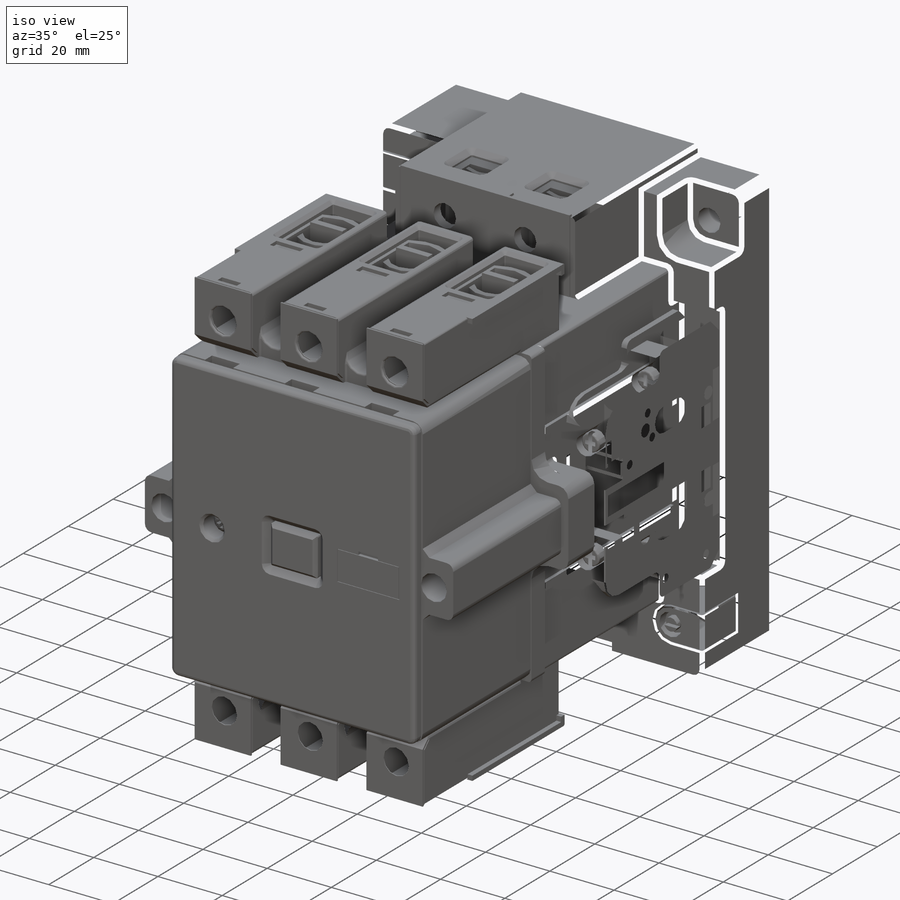
[diagram: iso view]
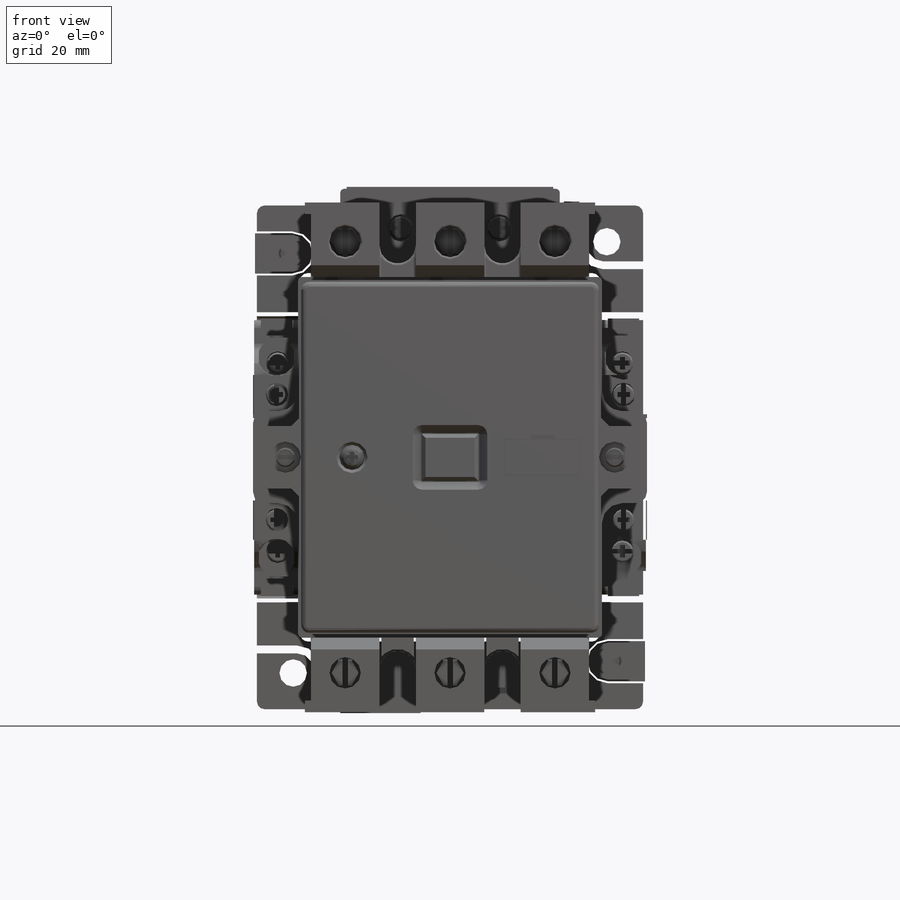
[diagram: front view]
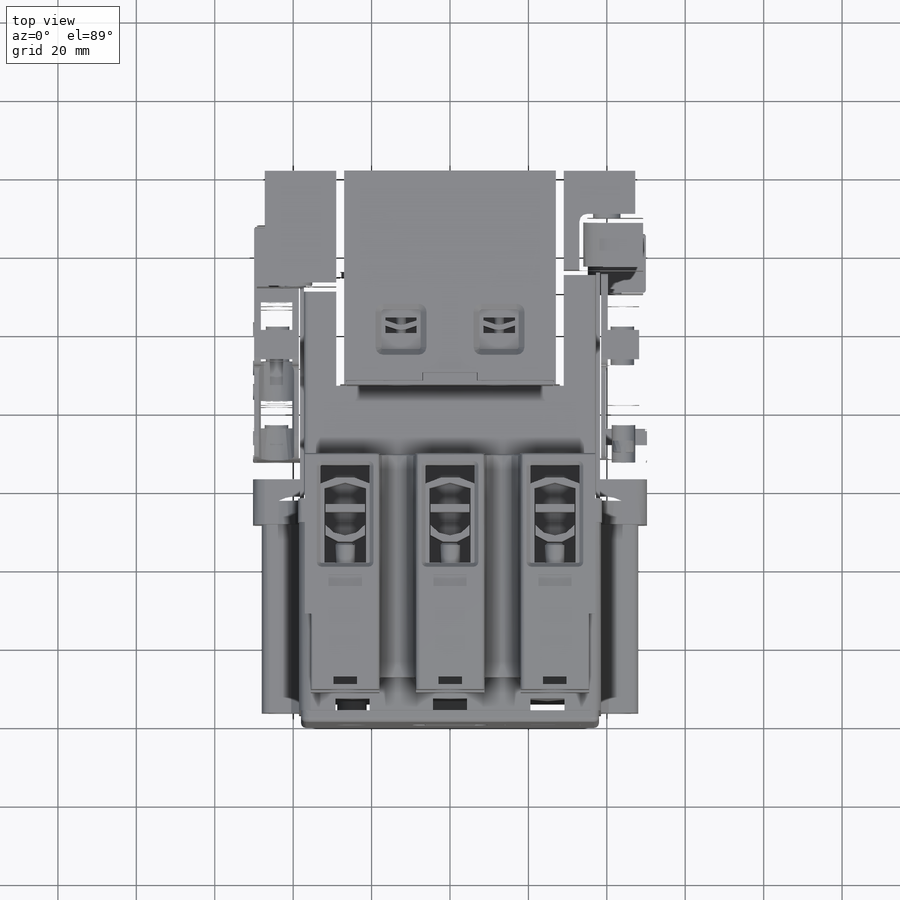
[diagram: top view]
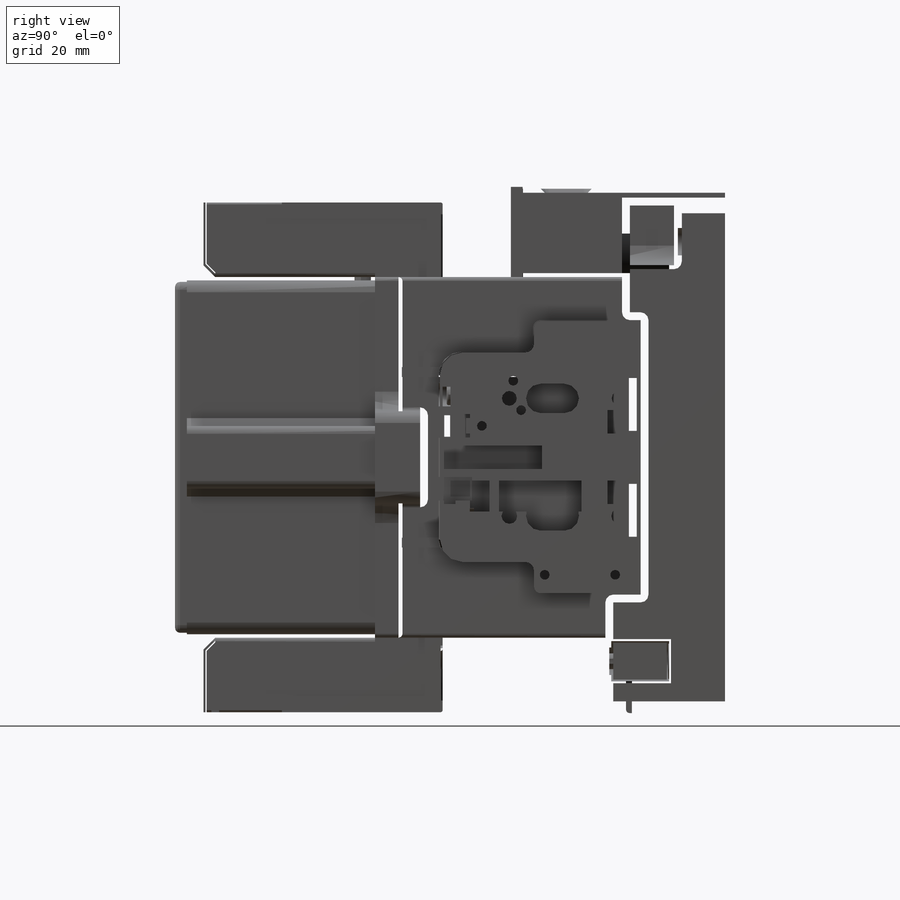
[diagram: right view]
SOLIDWORKS PART (.sldprt)
format: sldprt  version: not decoded by parser v0  size: 3,999,744 bytes
history: native  units: mm
features: sketch x93, cut_extrude x50, extrude x43, fillet x32, chamfer x8, mirror x5, material x1 (+14 scaffold rows collapsed)
feature tree (246):
  scaffold x14  (default folders/planes/origin — collapsed)
  material  "Material <not specified>"
  sketch  "Sketch1"  dims[D1=50.25mm D2=100.5mm D3=133.5mm D4=65.25mm D5=68.5mm D6=28.0mm D7=56.0mm D8=65.25mm]
  extrude  "Base-Extrude"  Depth=25.25mm
  sketch  "Sketch2"  dims[D1=29.25mm D2=29.25mm]
  extrude  "Boss-Extrude1"  Depth=4.25mm
  sketch  "Sketch3"  dims[D1=13.0mm D2=13.0mm D3=72.0mm D4=72.0mm D5=36.0mm D6=36.0mm]
  cut_extrude  "Cut-Extrude1"  Depth=4.75mm
  sketch  "Sketch4"  dims[c1.D3=5.0mm c1.D4=7.0mm c1.D1=16.0mm c1.D2=16.0mm c2.D1=16.25mm c2.D2=16.25mm c2.D5=40.0mm c2.D6=55.0mm c2.D7=40.0mm c2.D8=55.0mm]
  cut_extrude  "Cut-Extrude2"  Depth=13.25mm
  sketch  "Sketch5"  dims[D5=7.0mm D1=40.0mm D2=40.0mm D3=55.0mm D4=55.0mm]
  cut_extrude  "Cut-Extrude3"  Depth=13.25mm
  sketch  "Sketch6"  dims[D1=20.5mm D2=12.0mm D3=28.0mm]
  cut_extrude  "Cut-Extrude4"  Depth=1.5mm
  sketch  "Sketch7"  dims[D1=3.5mm D2=3.0mm D3=13.0mm D4=36.25mm]
  cut_extrude  "Cut-Extrude5"  Depth=5mm
  sketch  "Sketch8"  dims[D1=5.125mm D6=5.125mm D2=13.25mm D3=10.0mm D4=13.25mm D5=10.0mm]
  cut_extrude  "Cut-Extrude6"  Depth=15.25mm
  sketch  "Sketch9"  dims[D1=9.0mm]
  extrude  "Boss-Extrude2"  Depth=0.25mm
  sketch  "Sketch10"  dims[c1.D1=10.0mm c1.D2=10.0mm c1.D3=7.0mm c1.D4=7.0mm c2.D2=10.0mm c2.D4=16.0mm]
  extrude  "Boss-Extrude3"  Depth=15mm
  sketch  "Sketch11"  dims[D1=7.0mm]
  extrude  "Boss-Extrude4"  Depth=10mm
  sketch  "Sketch12"  dims[D1=6.0mm]
  extrude  "Boss-Extrude5"  Depth=3mm
  sketch  "Sketch13"  dims[D1=4.0mm D2=1.2mm D3=0.6mm D4=0.6mm D5=1.2mm]
  extrude  "Boss-Extrude6"  Depth=2mm
  sketch  "Sketch14"  dims[c1.D1=4.5mm c1.D6=4.5mm c2.D1=~5.151968mm c2.D2=0.6mm c2.D3=1.2mm c2.D4=0.6mm c2.D5=1.2mm]
  cut_extrude  "Cut-Extrude7"  Depth=1.5mm
  sketch  "Sketch15"  dims[D1=20.0mm D2=9.0mm D3=0.25mm D4=0.25mm]
  extrude  "Boss-Extrude7"  Depth=1.5mm
  sketch  "Sketch16"  dims[D1=32.5mm D2=56.0mm]
  extrude  "Boss-Extrude8"  Depth=29.25mm
  sketch  "Sketch17"  dims[c1.D1=73.8mm c1.D2=92.0mm c1.D3=46.0mm c1.D4=36.9mm c2.D1=1.0mm c2.D4=1.0mm c2.D5=2.5mm c2.D6=2.5mm c2.D7=23.0mm c2.D8=23.0mm]
  extrude  "Boss-Extrude9"  Depth=57mm
  sketch  "Sketch18"  dims[D1=38.75mm D2=38.75mm D3=46.0mm D4=46.0mm]
  extrude  "Boss-Extrude10"  Depth=7mm
  sketch  "Sketch19"  dims[c1.D3=3.0mm c1.D1=11.0mm c1.D2=11.0mm c2.D1=11.75mm c2.D2=23.5mm]
  extrude  "Boss-Extrude11"  Depth=12.5mm
  fillet  "Fillet1"  Radius=5mm
  sketch  "Sketch20"  dims[c1.D9=2.0mm c1.D1=45.125mm c1.D2=45.125mm c1.D3=38.5mm c1.D4=38.5mm c1.D5=9.5mm c1.D6=9.5mm c1.D7=8.0mm c1.D8=8.0mm c2.D9=16.0mm c2.D12=2.0mm c2.D13=2.0mm c2.D14=2.0mm c2.D15=2.0mm]
  extrude  "Boss-Extrude12"  Depth=48mm
  sketch  "Sketch21"  dims[D1=8.0mm D2=42.0mm D3=84.0mm]
  cut_extrude  "Cut-Extrude8"  Depth=10mm
  sketch  "Sketch22"  dims[D1=7.0mm]
  extrude  "Boss-Extrude13"  Depth=1mm
  sketch  "Sketch23"  dims[D1=5.0mm D2=5.0mm]
  extrude  "Boss-Extrude14"  Depth=2mm
  sketch  "Sketch24"  dims[c1.D1=5.0mm c1.D4=5.0mm c2.D1=~5.853623mm c2.D2=0.6mm c2.D3=1.2mm c2.D5=0.6mm c2.D6=1.2mm]
  cut_extrude  "Cut-Extrude9"  Depth=1.5mm
  fillet  "Fillet2"  Radius=3mm
  sketch  "Sketch25"  dims[D1=4.35mm D2=8.7mm D3=58.4mm D4=29.2mm D5=3.0mm]
  cut_extrude  "Cut-Extrude10"  Depth=1.5mm
  sketch  "Sketch26"  dims[D1=12.0mm D2=14.5mm D3=6.0mm D4=7.25mm]
  extrude  "Boss-Extrude15"  Depth=6mm
  chamfer  "Chamfer3"  Distance=1mm Angle=45deg
  fillet  "Fillet3"  Radius=0.5mm
  sketch  "Sketch27"  dims[D5=2.0mm D10=0.35mm D1=76.0mm D2=89.5mm D3=44.75mm D4=38.0mm D6=12.5mm D7=15.0mm D8=7.5mm D9=6.25mm]
  extrude  "Boss-Extrude16"  Depth=3mm
  fillet  "Fillet4"  Radius=1.25mm
  chamfer  "Chamfer5"  Distance=2mm Angle=45deg
  sketch  "Sketch28"  dims[D1=6.5mm D2=25.0mm]
  cut_extrude  "Cut-Extrude11"  Depth=7mm
  sketch  "Sketch30"  dims[D1=7.5mm D2=6.5mm]
  extrude  "Boss-Extrude17"  Depth=3mm
  sketch  "Sketch29"  dims[D1=6.4mm]
  extrude  "Boss-Extrude18"  Depth=3mm
  fillet  "Fillet5"  Radius=2mm
  sketch  "Sketch31"  dims[c1.D6=6.5mm c1.D1=1.0mm c1.D2=3.0mm c1.D3=3.0mm c1.D4=1.0mm c1.D5=1.0mm c2.D6=25.5mm c2.D7=0.5mm c2.D8=1.0mm]
  cut_extrude  "Cut-Extrude12"  Depth=3mm
  fillet  "Fillet6"  Radius=1mm
  sketch  "Sketch32"  dims[D1=9.25mm D2=19.25mm D3=6.125mm D4=10.25mm D5=6.5625mm D6=4.625mm D7=14.0mm]
  cut_extrude  "Cut-Extrude13"  Depth=1mm
  chamfer  "Chamfer6"  Distance=0.75mm Angle=45deg
  sketch  "Sketch33"  dims[D1=9.0mm D2=19.0mm D3=4.5mm D4=14.125mm]
  extrude  "Boss-Extrude19"  Depth=1mm
  sketch  "Sketch34"  dims[c1.D5=0.5mm c1.D1=10.0mm c1.D2=35.5mm c1.D3=10.5mm c1.D4=10.5mm c2.D5=56.0mm]
  cut_extrude  "Cut-Extrude14"  Depth=22mm
  chamfer  "Chamfer7"  Distance=1.5mm Angle=45deg
  sketch  "Sketch35"  dims[D1=32.5mm D2=16.0mm D3=42.0mm D4=21.0mm]
  cut_extrude  "Cut-Extrude15"  Depth=20mm
  sketch  "Sketch36"  dims[D1=32.5mm D2=42.0mm D3=21.0mm D4=16.0mm D5=4.0mm D6=4.0mm D7=8.0mm D8=8.0mm D9=5.0mm D10=4.5mm D11=4.5mm D12=5.0mm]
  extrude  "Boss-Extrude20"  Depth=19mm
  sketch  "Sketch39"  dims[D1=53.0mm D2=14.0mm D3=1.0mm D4=3.0mm D5=19.5mm D6=7.0mm]
  cut_extrude  "Cut-Extrude16"  Depth=18.5mm
  sketch  "Sketch40"  dims[D1=5.0mm D2=4.0mm D3=4.0mm D4=15.0mm]
  cut_extrude  "Cut-Extrude17"  Depth=18.5mm
  sketch  "Sketch38"  dims[D4=3.0mm D5=4.0mm D1=1.25mm D2=4.0mm D3=8.0mm]
  extrude  "Boss-Extrude21"  Depth=18.5mm
  sketch  "Sketch43"  dims[D1=3.0mm D2=4.0mm D3=4.0mm D4=17.0mm]
  cut_extrude  "Cut-Extrude18"  Depth=2mm
  sketch  "Sketch41"  dims[D1=6.0mm D2=13.0mm D3=13.0mm D4=0.5mm]
  cut_extrude  "Cut-Extrude19"  Depth=2mm
  sketch  "Sketch42"  dims[D1=0.25mm]
  extrude  "Boss-Extrude22"  Depth=2mm
  fillet  "Fillet8"  Radius=0.2mm
  sketch  "Sketch44"  dims[c1.D1=13.0mm c1.D2=13.0mm c1.D3=6.0mm c1.D4=6.0mm c1.D5=12.0mm c1.D6=12.0mm c1.D7=14.0mm c1.D8=14.0mm c2.D1=15.0mm c2.D3=12.0mm c2.D4=12.0mm c3.D1=1.0mm c3.D2=1.0mm]
  extrude  "Boss-Extrude23"  Depth=10mm
  sketch  "Sketch45"  dims[c1.D2=2.5mm c1.D1=25.0mm c2.D2=6.5mm c2.D3=10.0mm]
  extrude  "Boss-Extrude24"  Depth=7mm
  sketch  "Sketch46"  dims[D1=6.0mm]
  extrude  "Boss-Extrude25"  Depth=2.5mm
  sketch  "Sketch47"  dims[c1.D4=6.0mm c1.D5=6.5mm c1.D6=6.5mm c1.D1=1.2mm c1.D2=0.6mm c1.D3=1.2mm c2.D4=0.6mm c2.D7=0.6mm c2.D8=1.2mm c2.D9=1.0mm c2.D10=1.0mm c2.D11=0.6mm c2.D12=1.2mm c2.D13=1.0mm c2.D14=1.0mm c3.D13=1.0mm c3.D14=1.0mm]
  cut_extrude  "Cut-Extrude21"  Depth=1.5mm
  fillet  "Fillet9"  Radius=0.5mm
  sketch  "Sketch49"  dims[c1.D1=1.0mm c1.D2=13.7mm c1.D3=52.7mm c1.D4=6.85mm c1.D5=3.0mm c1.D6=51.75mm c1.D7=26.35mm c2.D6=53.6mm]
  extrude  "Boss-Extrude26"  Depth=23mm
  sketch  "Sketch50"  dims[D4=7.0mm D1=10.5mm D2=10.5mm D3=25.0mm D5=0.4mm D6=15.5mm]
  cut_extrude  "Cut-Extrude22"  Depth=1mm
  sketch  "Sketch51"  dims[D4=7.0mm D5=7.0mm D6=9.0mm D7=9.0mm D1=21.0mm D2=21.0mm D3=20.0mm]
  extrude  "Boss-Extrude27"  Depth=3mm
  sketch  "Sketch52"  dims[D1=72.0mm D2=61.0mm D3=74.0mm D4=37.0mm]
  extrude  "Boss-Extrude28"  Depth=19mm
  sketch  "Sketch53"  dims[c1.D11=9.25mm c1.D9=0.5mm c1.D7=6.625mm c1.D10=6.625mm c1.D1=35.5mm c1.D2=71.0mm c1.D3=74.0mm c1.D4=1.5mm c1.D5=16.0mm c1.D6=19.0mm c2.D7=18.5mm c2.D8=26.7mm c2.D9=22.2mm c3.D7=22.15mm c3.D10=8.0mm c3.D3=1.5mm c3.D4=1.5mm c3.D13=14.0mm c3.D14=2.0mm c4.D13=2.5mm c4.D15=12.5mm c4.D16=2.5mm c4.D17=2.5mm c4.D18=2.0mm c4.D19=2.5mm c4.D20=2.5mm c4.D21=2.0mm c4.D22=12.5mm c4.D8=2.5mm c4.D9=12.5mm c4.D6=8.0mm c4.D11=9.25mm c4.D12=9.25mm c5.D18=22.125mm c5.D23=22.125mm c5.D7=2.0mm c5.D12=2.0mm]
  cut_extrude  "Cut-Extrude23"  Depth=25mm
  sketch  "Sketch54"  dims[c1.D11=9.25mm c1.D9=0.5mm c1.D1=35.5mm c1.D2=71.0mm c1.D3=74.0mm c1.D4=1.5mm c1.D5=16.0mm c1.D6=19.0mm c1.D7=18.5mm c1.D8=26.7mm c2.D9=22.2mm c2.D7=22.15mm c2.D10=8.0mm c2.D3=1.5mm c2.D4=1.5mm c2.D13=14.0mm c2.D14=2.0mm c3.D13=2.5mm c3.D15=12.5mm c3.D16=2.5mm c3.D17=2.5mm c3.D18=2.0mm c3.D19=2.5mm c3.D20=2.5mm c3.D21=2.0mm c3.D22=12.5mm c3.D8=2.5mm c3.D9=12.5mm c3.D2=11.0mm c3.D3=22.125mm c3.D4=22.125mm c3.D7=2.0mm c3.D12=2.0mm]
  cut_extrude  "Cut-Extrude24"  Depth=61mm
  sketch  "Sketch56"  dims[D1=1.5mm D2=1.5mm D3=1.5mm]
  cut_extrude  "Cut-Extrude25"  Depth=59.5mm
  sketch  "Sketch57"  dims[D1=5.0mm D2=5.0mm]
  cut_extrude  "Cut-Extrude26"  Depth=20mm
  sketch  "Sketch58"  dims[D1=3.0mm D2=3.0mm D3=3.0mm D4=20.0mm D5=0.5mm D6=0.3mm D7=3.3mm D8=0.3mm]
  cut_extrude  "Cut-Extrude27"  Depth=20mm
  sketch  "Sketch59"  dims[D2=8.0mm D1=55.0mm D3=26.75mm D4=26.75mm D5=8.5mm]
  cut_extrude  "Cut-Extrude28"  Depth=1mm
  sketch  "Sketch60"  dims[D1=6.25mm D2=6.25mm D3=7.5mm D4=6.25mm D5=6.25mm]
  cut_extrude  "Cut-Extrude29"  Depth=45mm
  sketch  "Sketch61"  dims[D9=0.25mm D10=0.25mm D1=3.0mm D2=25.0mm D3=12.5mm D4=6.25mm D5=14.25mm D6=14.25mm D7=12.5mm D8=12.5mm]
  cut_extrude  "Cut-Extrude30"  Depth=17mm
  chamfer  "Chamfer8"  Distance=1mm Angle=45deg
  mirror  "Mirror1"
  cut_extrude  "Cut-Extrude33"  [1 undecoded]
  sketch  "Sketch64"  dims[D1=4.25mm D2=8.5mm D3=18.25mm D4=18.25mm D5=3.0mm D6=3.0mm]
  fillet  "Fillet14"  Radius=0.5mm
  fillet  "Fillet10"  Radius=1mm
  fillet  "Fillet12"  Radius=0.5mm
  cut_extrude  "Cut-Extrude32"  [1 undecoded]
  sketch  "Sketch63"  dims[c1.D1=1.2mm c1.D2=2.0mm c1.D3=6.0mm c1.D4=3.0mm c1.D5=20.75mm c1.D6=20.75mm c2.D1=4.0mm c2.D2=4.0mm c2.D3=1.0deg c2.D4=1.0deg]
  cut_extrude  "Cut-Extrude31"  [1 undecoded]
  sketch  "Sketch62"
  fillet  "Fillet11"  Radius=1mm
  fillet  "Fillet13"  Radius=0.5mm
  fillet  "Fillet15"  Radius=0.5mm
  sketch  "Sketch65"  dims[D1=2.0mm D2=85.0mm D3=10.0mm D4=5.0mm D5=10.0mm D6=10.0mm D7=16.75mm D8=16.75mm]
  extrude  "Boss-Extrude29"  Depth=18mm
  sketch  "Sketch66"  dims[c1.D1=12.0mm c1.D4=10.5mm c1.D8=12.0mm c1.D9=10.5mm c1.D10=12.0mm c2.D1=25.0mm c2.D2=14.0mm c2.D3=102.0mm c2.D5=1.0mm c2.D6=1.0mm c2.D7=1.5mm c3.D1=1.5mm c3.D2=12.0mm c3.D3=90.0mm c3.D4=11.5mm c3.D5=5.25mm c4.D4=10.5mm c4.D6=1.25mm c4.D7=12.5mm c4.D10=14.25mm c4.D11=14.25mm c5.D4=1.125mm]
  extrude  "Boss-Extrude30"  Depth=17mm
  sketch  "Sketch67"  dims[c1.D2=6.0mm c1.D4=6.0mm c1.D5=7.7mm c1.D3=88.0mm c2.D4=5.0mm c2.D5=5.0mm c2.D1=87.0mm c2.D2=26.75mm c2.D3=26.75mm c3.D4=3.0mm c3.D6=5.0mm c3.D7=5.0mm c3.D1=1.7mm]
  extrude  "Boss-Extrude31"  Depth=17mm
  sketch  "Sketch68"  dims[D1=~12.351619mm]
  extrude  "Boss-Extrude32"  Depth=7.8mm
  chamfer  "Chamfer9"  Distance=0.5mm Angle=45deg
  mirror  "Mirror3"
  cut_extrude  "Cut-Extrude34"  [1 undecoded]
  sketch  "Sketch70"  dims[D1=0.7mm D2=1.4mm D3=7.0mm D4=3.5mm]
  extrude  "Boss-Extrude33"  [1 undecoded]
  sketch  "Sketch69"  dims[c1.D1=7.0mm c1.D2=7.0mm c2.D1=3.0mm c2.D2=15.0mm c2.D3=1.0deg c2.D4=1.0deg]
  fillet  "Fillet16"  Radius=0.5mm
  fillet  "Fillet17"  Radius=1mm
  fillet  "Fillet18"  Radius=0.5mm
  fillet  "Fillet19"  Radius=0.5mm
  mirror  "Mirror2"
  fillet  "Fillet20"  Radius=3mm
  fillet  "Fillet21"  Radius=1mm
  fillet  "Fillet22"  Radius=1mm
  fillet  "Fillet23"  Radius=1mm
  fillet  "Fillet24"  Radius=0.5mm
  fillet  "Fillet25"  Radius=0.3mm
  fillet  "Fillet26"  Radius=1mm
  fillet  "Fillet27"  Radius=1mm
  sketch  "Sketch71"  dims[c1.D10=2.0mm c1.D11=6.0mm c1.D12=2.0mm c1.D1=51.0mm c1.D2=70.0mm c1.D3=35.0mm c1.D4=73.0mm c1.D7=4.0mm c1.D8=4.0mm c1.D13=14.4mm c1.D14=~5.886487mm c2.D14=~1.096815deg c3.D14=14.4mm c3.D15=12.5mm c3.D16=3.0mm c3.D17=6.25mm c3.D5=27.0mm c3.D6=8.0mm c3.D9=8.0mm]
  extrude  "Boss-Extrude34"  Depth=12mm
  fillet  "Fillet28"  Radius=0.3mm
  sketch  "Sketch72"  dims[D1=32.0mm D2=32.0mm D3=2.0mm D4=8.0mm D5=3.4mm D6=3.4mm]
  cut_extrude  "Cut-Extrude35"  Depth=39mm
  fillet  "Fillet29"  Radius=1.5mm
  sketch  "Sketch73"  dims[c1.D2=9.5mm c1.D1=6.0mm c1.D3=25.5mm c1.D4=51.0mm c2.D1=6.0mm c2.D5=4.5mm c2.D6=4.5mm c2.D7=4.5mm c2.D8=4.5mm]
  cut_extrude  "Cut-Extrude36"  Depth=25mm
  sketch  "Sketch74"  dims[D1=6.0mm D2=24.0mm D3=24.0mm]
  cut_extrude  "Cut-Extrude37"  Depth=15mm
  sketch  "Sketch75"  dims[D1=6.0mm D2=16.0mm D3=16.0mm D4=6.0mm]
  cut_extrude  "Cut-Extrude38"  Depth=15mm
  sketch  "Sketch76"  dims[D1=2.0mm D2=8.0mm D3=5.0mm D4=34.0mm D5=20.0mm]
  cut_extrude  "Cut-Extrude39"  Depth=15mm
  chamfer  "Chamfer10"  Distance=1mm Angle=45deg
  mirror  "Mirror4"
  cut_extrude  "Cut-Extrude49"  [1 undecoded]
  sketch  "Sketch89"
  cut_extrude  "Cut-Extrude44"  [1 undecoded]
  sketch  "Sketch82"  dims[c1.D5=4.0mm c1.D1=3.0mm c1.D2=6.0mm c1.D3=25.0mm c1.D4=1.0mm c1.D6=2.0mm c1.D7=4.0mm c1.D8=28.0mm c1.D9=1.0mm c2.D4=1.3mm c2.D10=2.0mm c2.D11=9.0mm c2.D12=6.0mm c2.D13=2.0mm c2.D14=6.0mm c2.D15=8.0mm c2.D16=2.0mm c2.D17=8.5mm c2.D18=6.0mm c2.D19=15.0mm c2.D1=1.0mm c2.D2=5.5mm c2.D3=1.0deg c3.D4=1.0deg c3.D1=2.5mm]
  cut_extrude  "Cut-Extrude48"  [1 undecoded]
  sketch  "Sketch87"
  cut_extrude  "Cut-Extrude45"  [1 undecoded]
  sketch  "Sketch83"  dims[c1.D1=11.6mm c1.D2=21.0mm c1.D3=7.8mm c1.D4=2.5mm c1.D5=5.0mm c2.D1=0.5mm c2.D2=1.0mm c2.D3=1.0deg c2.D4=1.0deg c3.D1=7.0mm c3.D2=3.0mm c3.D3=7.0mm c4.D1=3.0mm c4.D2=1.3mm c4.D4=5.5mm c4.D5=7.0mm c4.D6=10.0mm c4.D7=6.7mm c4.D8=5.0mm c4.D9=6.0mm c4.D10=7.0mm c4.D3=0.25mm c5.D4=0.25mm c5.D11=4.0mm c5.D12=6.0mm c5.D13=0.25mm c5.D14=6.5mm c5.D15=2.0mm c5.D16=2.0mm c5.D1=11.0mm c5.D2=0.3mm c5.D3=1.0deg c6.D4=1.0deg]
  extrude  "Boss-Extrude37"  [1 undecoded]
  sketch  "Sketch88"  dims[c1.D1=1.0mm c1.D2=4.0mm c1.D3=3.0mm c1.D4=3.0mm c1.D5=1.0mm c1.D6=1.0mm c1.D7=1.0mm c1.D8=5.0mm c2.D1=11.0mm c2.D2=10.0mm c2.D3=1.0deg c2.D4=1.0deg c3.D1=12.0mm c3.D2=11.0mm c3.D3=1.0deg c3.D4=1.0deg]
  fillet  "Fillet31"  Radius=2.5mm
  fillet  "Fillet30"  [1 undecoded]
  extrude  "Boss-Extrude36"  [1 undecoded]
  sketch  "Sketch86"  dims[c1.D1=3.8mm c1.D2=2.0mm c1.D3=28.0mm c1.D4=15.0mm c2.D1=0.5mm c2.D2=0.3mm c2.D3=1.0deg c2.D4=1.0deg c3.D1=0.2mm]
  cut_extrude  "Cut-Extrude47"  [1 undecoded]
  sketch  "Sketch85"
  cut_extrude  "Cut-Extrude46"  [1 undecoded]
  sketch  "Sketch84"  dims[c1.D1=6.0mm c1.D2=6.0mm c1.D3=4.0mm c1.D4=4.0mm c1.D5=1.0mm c2.D1=3.2mm c2.D2=0.5mm c2.D3=1.0deg c2.D4=1.0deg c3.D1=1.5mm c3.D2=1.0mm c4.D1=0.3mm c4.D2=3.2mm c4.D3=1.0deg c4.D4=1.0deg]
  cut_extrude  "Cut-Extrude43"  [1 undecoded]
  sketch  "Sketch81"
  cut_extrude  "Cut-Extrude42"  [1 undecoded]
  sketch  "Sketch80"  dims[c1.D1=3.0mm c1.D5=2.5mm c1.D6=2.0mm c1.D7=1.0mm c1.D2=15.0mm c1.D3=30.0mm c1.D4=44.0mm c1.D8=30.0mm c1.D9=28.0mm c1.D10=18.0mm c1.D11=3.0mm c1.D12=8.0mm c1.D13=4.5mm c1.D14=10.0mm c1.D15=7.0mm c1.D16=18.0mm c2.D1=5.5mm c2.D2=12.0mm c2.D3=1.0deg c2.D4=1.0deg c3.D1=1.0mm c4.D1=5.5mm c4.D2=5.0mm c4.D3=1.0deg c4.D4=1.0deg]
  cut_extrude  "Cut-Extrude41"  [1 undecoded]
  sketch  "Sketch78"  dims[c1.D2=6.0mm c1.D3=7.0mm c1.D4=3.0mm c1.D1=41.0mm c1.D5=15.0mm c1.D6=6.0mm c2.D1=70.0mm c2.D2=1.0mm]
  cut_extrude  "Cut-Extrude40"  [1 undecoded]
  sketch  "Sketch77"  dims[c1.D2=7.5mm c1.D1=6.0mm c1.D3=15.0mm c1.D4=41.0mm c1.D5=6.0mm c2.D1=1.0mm c2.D2=15.0mm c2.D3=1.0deg c2.D4=1.0deg c3.D1=1.5mm c3.D2=1.0mm c3.D3=1.0deg c3.D4=1.0deg]
  extrude  "Boss-Extrude35"  [1 undecoded]
  sketch  "Sketch79"  dims[c1.D1=40.0mm c1.D2=20.0mm c1.D3=35.0mm c1.D4=30.0mm c1.D5=17.0mm c1.D6=11.0mm c1.D7=22.0mm c2.D3=35.0mm c2.D1=12.0mm c2.D2=1.5mm c3.D3=1.0deg c3.D4=1.0deg]
  sketch  "Sketch90"  dims[D1=13.5mm D2=13.5mm D3=13.5mm D4=6.75mm D5=2.0mm D6=2.0mm D7=22.5mm D8=1.5mm D9=1.4mm D10=0.25mm D11=0.25mm]
  extrude  "Boss-Extrude38"  Depth=12mm
  chamfer  "Chamfer11"  Distance=0.7mm Angle=45deg
  mirror  "Mirror5"
  cut_extrude  "Cut-Extrude51"  [1 undecoded]
  sketch  "Sketch96"
  extrude  "Boss-Extrude42"  [1 undecoded]
  sketch  "Sketch95"  dims[D1=5.5mm]
  extrude  "Boss-Extrude41"  [1 undecoded]
  sketch  "Sketch94"  dims[c1.D1=3.5mm c2.D1=10.0mm c2.D2=1.5mm c2.D3=1.0deg c2.D4=1.0deg c3.D1=3.0mm c3.D2=10.0mm c3.D3=1.0deg c3.D4=1.0deg]
  fillet  "Fillet33"  Radius=0.5mm
  cut_extrude  "Cut-Extrude50"  [1 undecoded]
  sketch  "Sketch93"
  extrude  "Boss-Extrude40"  [1 undecoded]
  sketch  "Sketch92"
  extrude  "Boss-Extrude39"  [1 undecoded]
  sketch  "Sketch91"  dims[c1.D1=3.5mm c2.D1=10.0mm c2.D2=11.0mm c2.D3=1.0deg c2.D4=1.0deg c3.D1=5.5mm c4.D1=3.0mm c4.D2=10.0mm c4.D3=1.0deg c4.D4=1.0deg]
  fillet  "Fillet32"  Radius=0.5mm
decode coverage: 193 of 231 modeling features carry decoded parameters
note: ~ marks probable driven/reference dimensions
note: 25 parameter values undecoded
summary: no parameter record found for 25 features
note: suppression state not decoded; provenance and decode notes live in map.json
